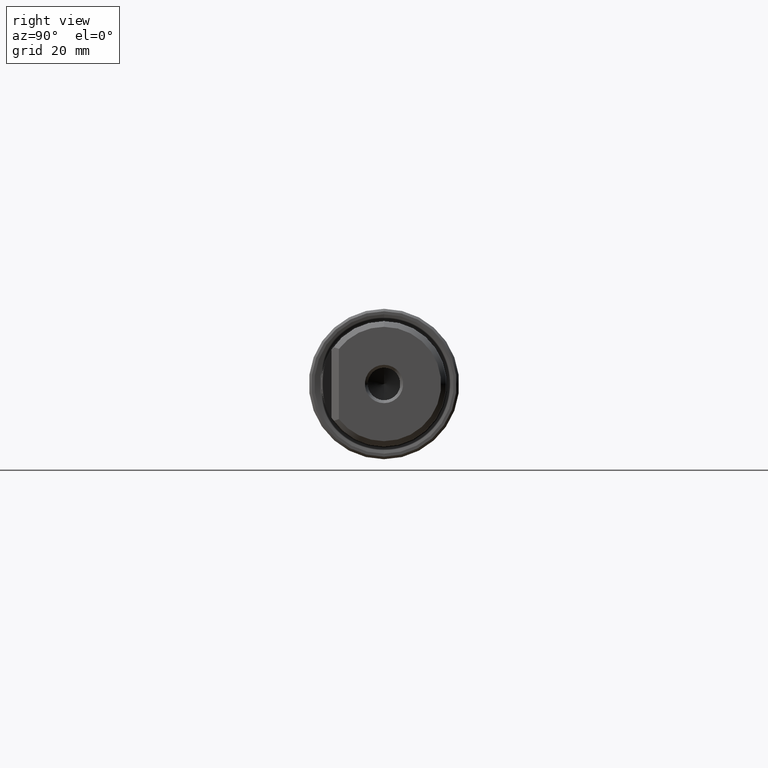
[diagram: clean part render]
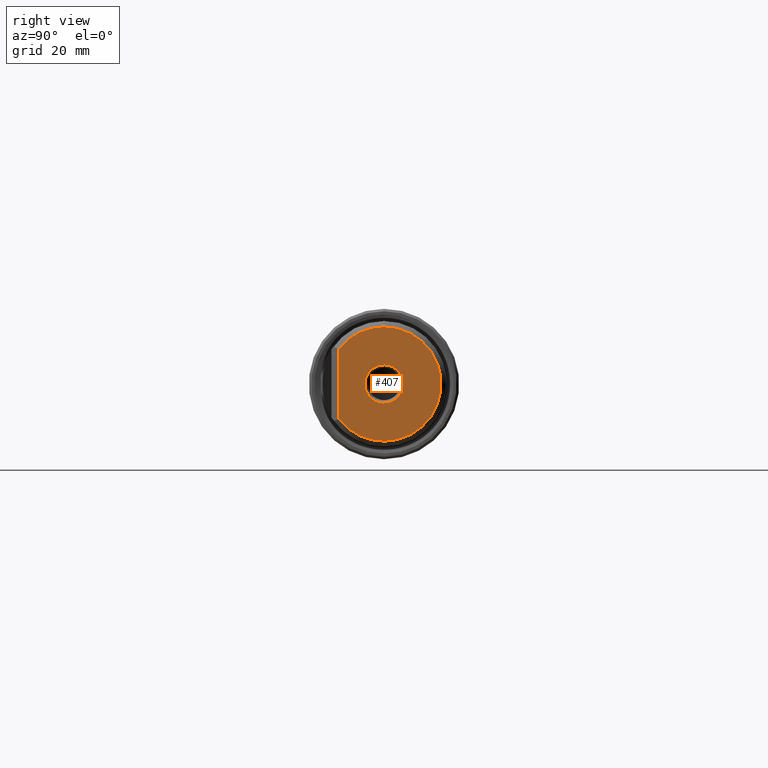
[diagram: same view with one face highlighted and labeled with its STEP entity id]
A machine part, right view. The second image highlights one B-rep face of the part: STEP entity #407.
In plain terms, the highlighted planar face has unit normal (-1, 0, -0).
Its self-contained STEP definition (entity closure, byte-faithful):
#8 = ORIENTED_EDGE ( 'NONE', *, *, #398, .T. ) ;
#32 = EDGE_CURVE ( 'NONE', #895, #346, #991, .T. ) ;
#100 = EDGE_CURVE ( 'NONE', #346, #155, #235, .T. ) ;
#106 = AXIS2_PLACEMENT_3D ( 'NONE', #270, #1083, #750 ) ;
#110 = AXIS2_PLACEMENT_3D ( 'NONE', #717, #308, #335 ) ;
#136 = CARTESIAN_POINT ( 'NONE',  ( 139.0999999999999900, 11.40000000000001800, 0.0000000000000000000 ) ) ;
#155 = VERTEX_POINT ( 'NONE', #222 ) ;
#163 = AXIS2_PLACEMENT_3D ( 'NONE', #388, #263, #602 ) ;
#204 = DIRECTION ( 'NONE',  ( -1.000000000000000000, 0.0000000000000000000, -0.0000000000000000000 ) ) ;
#207 = CARTESIAN_POINT ( 'NONE',  ( 139.0999999999999900, 0.0000000000000000000, -3.827350269189618600 ) ) ;
#215 = CARTESIAN_POINT ( 'NONE',  ( 139.0999999999999900, 4.687152256378827100E-016, 3.827350269189618600 ) ) ;
#222 = CARTESIAN_POINT ( 'NONE',  ( 139.0999999999999900, 1.457329690985352400E-015, -11.40000000000001800 ) ) ;
#230 = DIRECTION ( 'NONE',  ( -0.0000000000000000000, -0.0000000000000000000, 1.000000000000000000 ) ) ;
#235 = CIRCLE ( 'NONE', #106, 11.40000000000001800 ) ;
#245 = EDGE_CURVE ( 'NONE', #155, #946, #903, .T. ) ;
#263 = DIRECTION ( 'NONE',  ( -1.000000000000000000, -0.0000000000000000000, -0.0000000000000000000 ) ) ;
#270 = CARTESIAN_POINT ( 'NONE',  ( 139.0999999999999900, 0.0000000000000000000, 0.0000000000000000000 ) ) ;
#308 = DIRECTION ( 'NONE',  ( -1.000000000000000000, -0.0000000000000000000, -0.0000000000000000000 ) ) ;
#335 = DIRECTION ( 'NONE',  ( 0.0000000000000000000, 0.0000000000000000000, 1.000000000000000000 ) ) ;
#346 = VERTEX_POINT ( 'NONE', #817 ) ;
#388 = CARTESIAN_POINT ( 'NONE',  ( 139.0999999999999900, 0.0000000000000000000, 0.0000000000000000000 ) ) ;
#398 = EDGE_CURVE ( 'NONE', #846, #815, #536, .T. ) ;
#407 = ADVANCED_FACE ( 'NONE', ( #712, #700 ), #559, .F. ) ;
#423 = DIRECTION ( 'NONE',  ( -1.000000000000000000, -0.0000000000000000000, -0.0000000000000000000 ) ) ;
#481 = ORIENTED_EDGE ( 'NONE', *, *, #572, .T. ) ;
#485 = DIRECTION ( 'NONE',  ( -1.000000000000000000, -0.0000000000000000000, -0.0000000000000000000 ) ) ;
#519 = AXIS2_PLACEMENT_3D ( 'NONE', #775, #423, #1178 ) ;
#536 = CIRCLE ( 'NONE', #994, 3.827350269189618600 ) ;
#559 = PLANE ( 'NONE',  #814 ) ;
#572 = EDGE_CURVE ( 'NONE', #815, #846, #961, .T. ) ;
#575 = ORIENTED_EDGE ( 'NONE', *, *, #245, .F. ) ;
#602 = DIRECTION ( 'NONE',  ( 0.0000000000000000000, 0.0000000000000000000, 1.000000000000000000 ) ) ;
#620 = ORIENTED_EDGE ( 'NONE', *, *, #984, .F. ) ;
#647 = ORIENTED_EDGE ( 'NONE', *, *, #32, .F. ) ;
#679 = CARTESIAN_POINT ( 'NONE',  ( 139.0999999999999900, -8.999999999999966200, -6.997142273814436200 ) ) ;
#700 = FACE_OUTER_BOUND ( 'NONE', #877, .T. ) ;
#701 = ORIENTED_EDGE ( 'NONE', *, *, #100, .F. ) ;
#712 = FACE_BOUND ( 'NONE', #1036, .T. ) ;
#717 = CARTESIAN_POINT ( 'NONE',  ( 139.0999999999999900, 0.0000000000000000000, 0.0000000000000000000 ) ) ;
#720 = DIRECTION ( 'NONE',  ( -0.0000000000000000000, 0.0000000000000000000, 1.000000000000000000 ) ) ;
#750 = DIRECTION ( 'NONE',  ( 0.0000000000000000000, 0.0000000000000000000, 1.000000000000000000 ) ) ;
#775 = CARTESIAN_POINT ( 'NONE',  ( 139.0999999999999900, 0.0000000000000000000, 0.0000000000000000000 ) ) ;
#814 = AXIS2_PLACEMENT_3D ( 'NONE', #136, #204, #720 ) ;
#815 = VERTEX_POINT ( 'NONE', #207 ) ;
#817 = CARTESIAN_POINT ( 'NONE',  ( 139.0999999999999900, 0.0000000000000000000, 11.40000000000001800 ) ) ;
#846 = VERTEX_POINT ( 'NONE', #215 ) ;
#877 = EDGE_LOOP ( 'NONE', ( #647, #620, #575, #701 ) ) ;
#895 = VERTEX_POINT ( 'NONE', #955 ) ;
#903 = CIRCLE ( 'NONE', #519, 11.40000000000001800 ) ;
#946 = VERTEX_POINT ( 'NONE', #679 ) ;
#954 = DIRECTION ( 'NONE',  ( 0.0000000000000000000, 0.0000000000000000000, 1.000000000000000000 ) ) ;
#955 = CARTESIAN_POINT ( 'NONE',  ( 139.0999999999999900, -8.999999999999966200, 6.997142273814429100 ) ) ;
#961 = CIRCLE ( 'NONE', #163, 3.827350269189618600 ) ;
#966 = CARTESIAN_POINT ( 'NONE',  ( 139.0999999999999900, 0.0000000000000000000, 0.0000000000000000000 ) ) ;
#984 = EDGE_CURVE ( 'NONE', #946, #895, #1023, .T. ) ;
#989 = VECTOR ( 'NONE', #230, 1000.000000000000000 ) ;
#991 = CIRCLE ( 'NONE', #110, 11.40000000000001800 ) ;
#994 = AXIS2_PLACEMENT_3D ( 'NONE', #966, #485, #954 ) ;
#1023 = LINE ( 'NONE', #1046, #989 ) ;
#1036 = EDGE_LOOP ( 'NONE', ( #481, #8 ) ) ;
#1046 = CARTESIAN_POINT ( 'NONE',  ( 139.0999999999999900, -8.999999999999966200, -13.99999999999999800 ) ) ;
#1083 = DIRECTION ( 'NONE',  ( -1.000000000000000000, -0.0000000000000000000, -0.0000000000000000000 ) ) ;
#1178 = DIRECTION ( 'NONE',  ( 0.0000000000000000000, 0.0000000000000000000, 1.000000000000000000 ) ) ;